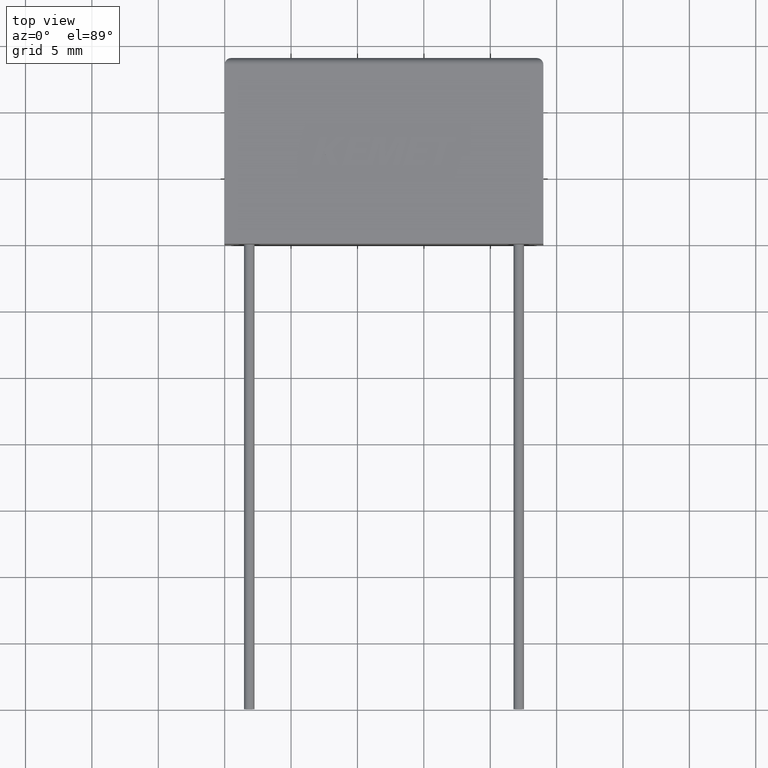
[diagram: clean part render]
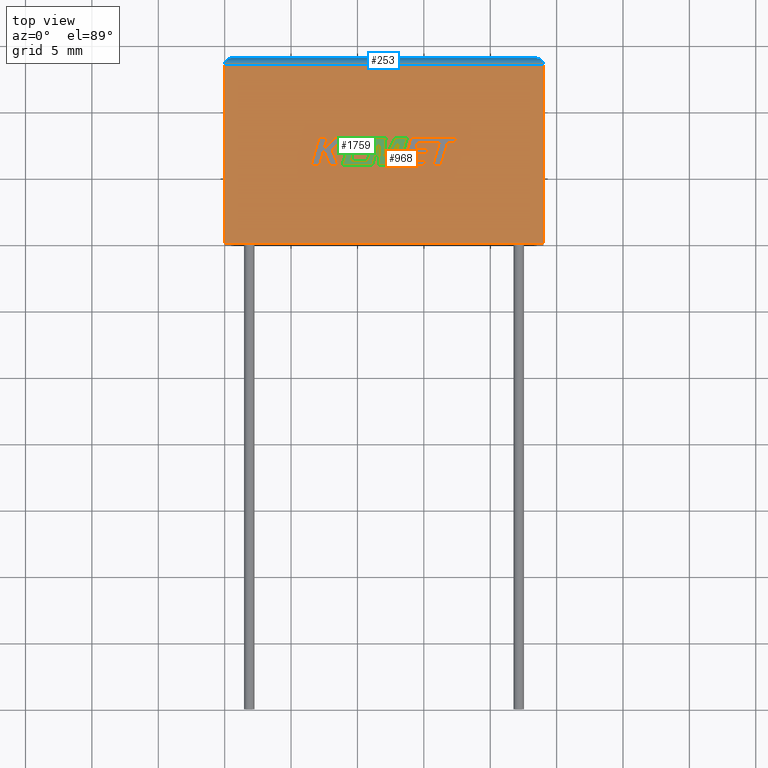
[diagram: same view with three faces highlighted in distinct colors, each labeled with its STEP entity id]
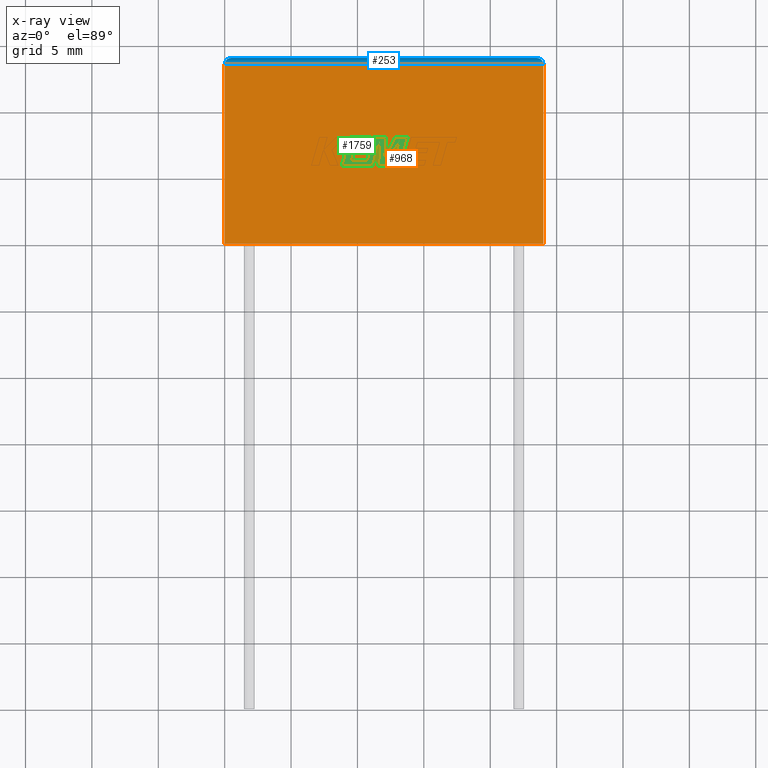
[diagram: x-ray of the same camera — body ghosted, the three highlighted faces saturated]
A machine part, top view with three faces highlighted in distinct colors.
The next image is the same camera in x-ray (body ghosted, the three faces saturated) — at least one of them is partly hidden behind the body in this view.
Their STEP definitions:

[orange] entity #968 — the highlighted planar face has unit normal (0, 0, -1).
#39 = AXIS2_PLACEMENT_3D ( 'NONE', #182, #1710, #1907 ) ;
#137 = ORIENTED_EDGE ( 'NONE', *, *, #2119, .T. ) ;
#182 = CARTESIAN_POINT ( 'NONE',  ( 0.0000000000000000000, 0.0000000000000000000, 7.599999999999999600 ) ) ;
#254 = VECTOR ( 'NONE', #747, 1000.000000000000000 ) ;
#259 = FACE_OUTER_BOUND ( 'NONE', #1365, .T. ) ;
#289 = LINE ( 'NONE', #2323, #2109 ) ;
#303 = VECTOR ( 'NONE', #1196, 1000.000000000000000 ) ;
#335 = ORIENTED_EDGE ( 'NONE', *, *, #1553, .T. ) ;
#348 = CARTESIAN_POINT ( 'NONE',  ( 0.0000000000000000000, 0.0000000000000000000, 7.599999999999999600 ) ) ;
#478 = CARTESIAN_POINT ( 'NONE',  ( 0.0000000000000000000, 0.0000000000000000000, 7.599999999999999600 ) ) ;
#494 = EDGE_CURVE ( 'NONE', #1913, #1644, #289, .T. ) ;
#582 = VERTEX_POINT ( 'NONE', #831 ) ;
#645 = DIRECTION ( 'NONE',  ( -1.000000000000000000, 0.0000000000000000000, 0.0000000000000000000 ) ) ;
#747 = DIRECTION ( 'NONE',  ( -0.0000000000000000000, -1.000000000000000000, -0.0000000000000000000 ) ) ;
#778 = LINE ( 'NONE', #348, #254 ) ;
#831 = CARTESIAN_POINT ( 'NONE',  ( 0.0000000000000000000, 0.0000000000000000000, 7.599999999999999600 ) ) ;
#968 = ADVANCED_FACE ( 'NONE', ( #259 ), #2473, .F. ) ;
#1001 = CARTESIAN_POINT ( 'NONE',  ( 0.0000000000000000000, 13.50000000000000000, 7.599999999999999600 ) ) ;
#1163 = CARTESIAN_POINT ( 'NONE',  ( 24.00000000000000000, 0.0000000000000000000, 7.599999999999999600 ) ) ;
#1196 = DIRECTION ( 'NONE',  ( 0.0000000000000000000, 1.000000000000000000, 0.0000000000000000000 ) ) ;
#1256 = ORIENTED_EDGE ( 'NONE', *, *, #494, .T. ) ;
#1365 = EDGE_LOOP ( 'NONE', ( #137, #1256, #335, #1442 ) ) ;
#1393 = EDGE_CURVE ( 'NONE', #582, #2083, #2347, .T. ) ;
#1430 = CARTESIAN_POINT ( 'NONE',  ( 24.00000000000000000, 13.50000000000000000, 7.599999999999999600 ) ) ;
#1442 = ORIENTED_EDGE ( 'NONE', *, *, #1393, .T. ) ;
#1504 = VECTOR ( 'NONE', #2188, 1000.000000000000000 ) ;
#1553 = EDGE_CURVE ( 'NONE', #1644, #582, #778, .T. ) ;
#1644 = VERTEX_POINT ( 'NONE', #1001 ) ;
#1710 = DIRECTION ( 'NONE',  ( 0.0000000000000000000, 0.0000000000000000000, -1.000000000000000000 ) ) ;
#1907 = DIRECTION ( 'NONE',  ( -1.000000000000000000, 0.0000000000000000000, -0.0000000000000000000 ) ) ;
#1913 = VERTEX_POINT ( 'NONE', #1430 ) ;
#2083 = VERTEX_POINT ( 'NONE', #2344 ) ;
#2109 = VECTOR ( 'NONE', #645, 1000.000000000000000 ) ;
#2119 = EDGE_CURVE ( 'NONE', #2083, #1913, #2339, .T. ) ;
#2188 = DIRECTION ( 'NONE',  ( 1.000000000000000000, 0.0000000000000000000, 0.0000000000000000000 ) ) ;
#2323 = CARTESIAN_POINT ( 'NONE',  ( 0.0000000000000000000, 13.50000000000000000, 7.599999999999999600 ) ) ;
#2339 = LINE ( 'NONE', #1163, #303 ) ;
#2344 = CARTESIAN_POINT ( 'NONE',  ( 24.00000000000000000, 0.0000000000000000000, 7.599999999999999600 ) ) ;
#2347 = LINE ( 'NONE', #478, #1504 ) ;
#2473 = PLANE ( 'NONE',  #39 ) ;

[blue] entity #253 — the highlighted cylindrical surface (edge-blend (fillet) strip) has radius 0.5 mm, axis along (-1, 0, 0).
#51 = VERTEX_POINT ( 'NONE', #103 ) ;
#72 = VERTEX_POINT ( 'NONE', #724 ) ;
#103 = CARTESIAN_POINT ( 'NONE',  ( 0.4999999999999998900, 14.00000000000000000, 7.100000000000000500 ) ) ;
#148 = DIRECTION ( 'NONE',  ( -1.000000000000000000, 0.0000000000000000000, 0.0000000000000000000 ) ) ;
#158 = CARTESIAN_POINT ( 'NONE',  ( 24.00000000000000000, 13.79289321881345000, 7.599999999999998800 ) ) ;
#178 = CARTESIAN_POINT ( 'NONE',  ( 0.0000000000000000000, 14.00000000000000000, 7.100000000000000500 ) ) ;
#253 = ADVANCED_FACE ( 'NONE', ( #1844 ), #1510, .T. ) ;
#289 = LINE ( 'NONE', #2323, #2109 ) ;
#459 = VECTOR ( 'NONE', #604, 1000.000000000000000 ) ;
#494 = EDGE_CURVE ( 'NONE', #1913, #1644, #289, .T. ) ;
#542 = CARTESIAN_POINT ( 'NONE',  ( 23.50000000000000000, 14.00000000000000000, 7.100000000000000500 ) ) ;
#558 = DIRECTION ( 'NONE',  ( 0.0000000000000000000, 0.0000000000000000000, 1.000000000000000000 ) ) ;
#604 = DIRECTION ( 'NONE',  ( 1.000000000000000000, -0.0000000000000000000, -0.0000000000000000000 ) ) ;
#641 = ORIENTED_EDGE ( 'NONE', *, *, #2006, .T. ) ;
#645 = DIRECTION ( 'NONE',  ( -1.000000000000000000, 0.0000000000000000000, 0.0000000000000000000 ) ) ;
#724 = CARTESIAN_POINT ( 'NONE',  ( 23.50000000000000000, 14.00000000000000000, 7.100000000000000500 ) ) ;
#830 = EDGE_LOOP ( 'NONE', ( #641, #2264, #2032, #1445 ) ) ;
#908 = CARTESIAN_POINT ( 'NONE',  ( 0.4999999999999998900, 14.00000000000000000, 7.100000000000000500 ) ) ;
#1001 = CARTESIAN_POINT ( 'NONE',  ( 0.0000000000000000000, 13.50000000000000000, 7.599999999999999600 ) ) ;
#1224 =( BOUNDED_CURVE ( )  B_SPLINE_CURVE ( 3, ( #908, #2229, #2235, #2273 ),
 .UNSPECIFIED., .F., .F. ) 
 B_SPLINE_CURVE_WITH_KNOTS ( ( 4, 4 ),
 ( 1.570796326794896800, 3.141592653589793100 ),
 .UNSPECIFIED. ) 
 CURVE ( )  GEOMETRIC_REPRESENTATION_ITEM ( )  RATIONAL_B_SPLINE_CURVE ( ( 1.000000000000000000, 0.8047378541243650500, 0.8047378541243650500, 1.000000000000000000 ) ) 
 REPRESENTATION_ITEM ( '' )  );
#1317 = LINE ( 'NONE', #178, #459 ) ;
#1430 = CARTESIAN_POINT ( 'NONE',  ( 24.00000000000000000, 13.50000000000000000, 7.599999999999999600 ) ) ;
#1445 = ORIENTED_EDGE ( 'NONE', *, *, #1563, .F. ) ;
#1510 = CYLINDRICAL_SURFACE ( 'NONE', #1574, 0.5000000000000004400 ) ;
#1563 = EDGE_CURVE ( 'NONE', #51, #72, #1317, .T. ) ;
#1574 = AXIS2_PLACEMENT_3D ( 'NONE', #2460, #148, #558 ) ;
#1644 = VERTEX_POINT ( 'NONE', #1001 ) ;
#1678 = CARTESIAN_POINT ( 'NONE',  ( 23.79289321881345000, 13.99999999999999600, 7.392893218813450900 ) ) ;
#1844 = FACE_OUTER_BOUND ( 'NONE', #830, .T. ) ;
#1913 = VERTEX_POINT ( 'NONE', #1430 ) ;
#2006 = EDGE_CURVE ( 'NONE', #51, #1644, #1224, .T. ) ;
#2032 = ORIENTED_EDGE ( 'NONE', *, *, #2216, .F. ) ;
#2087 =( BOUNDED_CURVE ( )  B_SPLINE_CURVE ( 3, ( #542, #1678, #158, #2442 ),
 .UNSPECIFIED., .F., .F. ) 
 B_SPLINE_CURVE_WITH_KNOTS ( ( 4, 4 ),
 ( 1.570796326794896600, 3.141592653589793100 ),
 .UNSPECIFIED. ) 
 CURVE ( )  GEOMETRIC_REPRESENTATION_ITEM ( )  RATIONAL_B_SPLINE_CURVE ( ( 1.000000000000000000, 0.8047378541243649400, 0.8047378541243649400, 1.000000000000000000 ) ) 
 REPRESENTATION_ITEM ( '' )  );
#2109 = VECTOR ( 'NONE', #645, 1000.000000000000000 ) ;
#2216 = EDGE_CURVE ( 'NONE', #72, #1913, #2087, .T. ) ;
#2229 = CARTESIAN_POINT ( 'NONE',  ( 0.2071067811865474300, 13.99999999999999600, 7.392893218813451700 ) ) ;
#2235 = CARTESIAN_POINT ( 'NONE',  ( 3.586907429118598600E-017, 13.79289321881345200, 7.599999999999999600 ) ) ;
#2264 = ORIENTED_EDGE ( 'NONE', *, *, #494, .F. ) ;
#2273 = CARTESIAN_POINT ( 'NONE',  ( 0.0000000000000000000, 13.50000000000000000, 7.599999999999999600 ) ) ;
#2323 = CARTESIAN_POINT ( 'NONE',  ( 0.0000000000000000000, 13.50000000000000000, 7.599999999999999600 ) ) ;
#2442 = CARTESIAN_POINT ( 'NONE',  ( 24.00000000000000000, 13.50000000000000000, 7.599999999999999600 ) ) ;
#2460 = CARTESIAN_POINT ( 'NONE',  ( 0.0000000000000000000, 13.50000000000000000, 7.100000000000000500 ) ) ;

[green] entity #1759 — the highlighted planar face has unit normal (0, 0, -1).
#10 = LINE ( 'NONE', #1444, #2108 ) ;
#24 = ORIENTED_EDGE ( 'NONE', *, *, #1020, .T. ) ;
#27 = VERTEX_POINT ( 'NONE', #448 ) ;
#46 = ORIENTED_EDGE ( 'NONE', *, *, #1402, .T. ) ;
#56 = VECTOR ( 'NONE', #321, 1000.000000000000000 ) ;
#71 = EDGE_CURVE ( 'NONE', #1162, #1662, #1660, .T. ) ;
#79 = LINE ( 'NONE', #627, #420 ) ;
#85 = DIRECTION ( 'NONE',  ( 0.2759782365590722800, 0.9611638845408958500, 0.0000000000000000000 ) ) ;
#112 = DIRECTION ( 'NONE',  ( 0.0000000000000000000, 0.0000000000000000000, -1.000000000000000000 ) ) ;
#117 = CARTESIAN_POINT ( 'NONE',  ( 12.07109175963770500, 6.484372752351331900, 7.604999999999999500 ) ) ;
#122 = PLANE ( 'NONE',  #1587 ) ;
#127 = VERTEX_POINT ( 'NONE', #307 ) ;
#151 = VERTEX_POINT ( 'NONE', #117 ) ;
#162 = ORIENTED_EDGE ( 'NONE', *, *, #1741, .T. ) ;
#167 = ORIENTED_EDGE ( 'NONE', *, *, #2198, .T. ) ;
#175 = VERTEX_POINT ( 'NONE', #1642 ) ;
#191 = CARTESIAN_POINT ( 'NONE',  ( 10.73401303815242800, 7.211409104020453300, 7.604999999999999500 ) ) ;
#208 = VECTOR ( 'NONE', #1110, 1000.000000000000000 ) ;
#236 = VECTOR ( 'NONE', #1873, 1000.000000000000000 ) ;
#237 = VERTEX_POINT ( 'NONE', #2071 ) ;
#242 = DIRECTION ( 'NONE',  ( -0.4443210308329522100, -0.8958676361826799500, 0.0000000000000000000 ) ) ;
#266 = CARTESIAN_POINT ( 'NONE',  ( 13.16397327778773800, 7.794008435746613700, 7.604999999999999500 ) ) ;
#275 = VERTEX_POINT ( 'NONE', #1707 ) ;
#278 = ORIENTED_EDGE ( 'NONE', *, *, #611, .T. ) ;
#284 = LINE ( 'NONE', #607, #1423 ) ;
#290 = CARTESIAN_POINT ( 'NONE',  ( 10.62045664959350900, 6.813844041955564800, 7.604999999999999500 ) ) ;
#307 = CARTESIAN_POINT ( 'NONE',  ( 9.927361184400503200, 7.611413215545429300, 7.604999999999999500 ) ) ;
#318 = EDGE_CURVE ( 'NONE', #27, #789, #1757, .T. ) ;
#321 = DIRECTION ( 'NONE',  ( 1.000000000000000000, 0.0000000000000000000, 0.0000000000000000000 ) ) ;
#322 = VECTOR ( 'NONE', #1243, 1000.000000000000200 ) ;
#339 = CARTESIAN_POINT ( 'NONE',  ( 13.15800970377181800, 5.870199999999999600, 7.604999999999999500 ) ) ;
#350 = ORIENTED_EDGE ( 'NONE', *, *, #1926, .T. ) ;
#355 = CARTESIAN_POINT ( 'NONE',  ( 10.62045664959350900, 6.813844041955564800, 7.604999999999999500 ) ) ;
#378 = CARTESIAN_POINT ( 'NONE',  ( 11.13265049557882900, 5.870199999999998800, 7.604999999999999500 ) ) ;
#401 = VECTOR ( 'NONE', #1540, 1000.000000000000100 ) ;
#419 = ORIENTED_EDGE ( 'NONE', *, *, #2346, .T. ) ;
#420 = VECTOR ( 'NONE', #850, 1000.000000000000100 ) ;
#448 = CARTESIAN_POINT ( 'NONE',  ( 11.68238478015423700, 7.784788436449807700, 7.604999999999999500 ) ) ;
#500 = LINE ( 'NONE', #2293, #401 ) ;
#522 = VERTEX_POINT ( 'NONE', #1394 ) ;
#552 = CARTESIAN_POINT ( 'NONE',  ( 12.14838708525922700, 5.870199999999999600, 7.604999999999999500 ) ) ;
#557 = CARTESIAN_POINT ( 'NONE',  ( 10.90717901084580400, 7.611413215545429300, 7.604999999999999500 ) ) ;
#566 = VECTOR ( 'NONE', #1322, 1000.000000000000000 ) ;
#574 = ORIENTED_EDGE ( 'NONE', *, *, #2084, .T. ) ;
#581 = CARTESIAN_POINT ( 'NONE',  ( 10.90717901084580400, 7.611413215545429300, 7.604999999999999500 ) ) ;
#583 = EDGE_CURVE ( 'NONE', #237, #151, #1485, .T. ) ;
#590 = LINE ( 'NONE', #1085, #56 ) ;
#605 = CARTESIAN_POINT ( 'NONE',  ( 11.68238478015423700, 7.784788436449807700, 7.604999999999999500 ) ) ;
#607 = CARTESIAN_POINT ( 'NONE',  ( 9.810966866978692000, 7.211409104020453300, 7.604999999999999500 ) ) ;
#611 = EDGE_CURVE ( 'NONE', #1992, #2474, #2292, .T. ) ;
#627 = CARTESIAN_POINT ( 'NONE',  ( 11.23794812053024300, 8.020761567497706000, 7.604999999999999500 ) ) ;
#691 = VECTOR ( 'NONE', #2024, 1000.000000000000100 ) ;
#699 = EDGE_CURVE ( 'NONE', #127, #2276, #785, .T. ) ;
#700 = CARTESIAN_POINT ( 'NONE',  ( 10.73740024356318100, 6.279345642751769300, 7.604999999999999500 ) ) ;
#708 = DIRECTION ( 'NONE',  ( -1.000000000000000000, 0.0000000000000000000, 0.0000000000000000000 ) ) ;
#713 = CARTESIAN_POINT ( 'NONE',  ( 11.02344254813588800, 8.020761567497706000, 7.604999999999999500 ) ) ;
#731 = VERTEX_POINT ( 'NONE', #2368 ) ;
#743 = EDGE_CURVE ( 'NONE', #789, #731, #10, .T. ) ;
#755 = CARTESIAN_POINT ( 'NONE',  ( 11.57506660389045000, 5.870199999999999600, 7.604999999999999500 ) ) ;
#756 = ORIENTED_EDGE ( 'NONE', *, *, #2355, .T. ) ;
#760 = VECTOR ( 'NONE', #85, 1000.000000000000200 ) ;
#761 = EDGE_CURVE ( 'NONE', #944, #2005, #2169, .T. ) ;
#784 = CARTESIAN_POINT ( 'NONE',  ( 10.73401303815242800, 7.211409104020453300, 7.604999999999999500 ) ) ;
#785 = LINE ( 'NONE', #1056, #1375 ) ;
#789 = VERTEX_POINT ( 'NONE', #755 ) ;
#791 = ORIENTED_EDGE ( 'NONE', *, *, #761, .T. ) ;
#817 = CARTESIAN_POINT ( 'NONE',  ( 9.545247794913541000, 6.279345642751769300, 7.604999999999999500 ) ) ;
#825 = EDGE_CURVE ( 'NONE', #2474, #1975, #840, .T. ) ;
#832 = CARTESIAN_POINT ( 'NONE',  ( 10.73740024356318100, 6.279345642751769300, 7.604999999999999500 ) ) ;
#840 = LINE ( 'NONE', #784, #566 ) ;
#850 = DIRECTION ( 'NONE',  ( -0.2762517575166415500, -0.9610853065513833600, 0.0000000000000000000 ) ) ;
#853 = CARTESIAN_POINT ( 'NONE',  ( 13.15800970377181800, 5.870199999999999600, 7.604999999999999500 ) ) ;
#885 = ORIENTED_EDGE ( 'NONE', *, *, #1216, .T. ) ;
#898 = CARTESIAN_POINT ( 'NONE',  ( 12.07109175963770500, 6.484372752351331900, 7.604999999999999500 ) ) ;
#910 = CARTESIAN_POINT ( 'NONE',  ( 11.02344254813588800, 8.020761567497706000, 7.604999999999999500 ) ) ;
#926 = VECTOR ( 'NONE', #2405, 1000.000000000000100 ) ;
#938 = LINE ( 'NONE', #2025, #2446 ) ;
#944 = VERTEX_POINT ( 'NONE', #853 ) ;
#1020 = EDGE_CURVE ( 'NONE', #2276, #1769, #1683, .T. ) ;
#1022 = CARTESIAN_POINT ( 'NONE',  ( 12.83309033457769000, 8.020761567497706000, 7.604999999999999500 ) ) ;
#1033 = LINE ( 'NONE', #2372, #1634 ) ;
#1054 = CARTESIAN_POINT ( 'NONE',  ( 11.23794812053024300, 8.020761567497706000, 7.604999999999999500 ) ) ;
#1056 = CARTESIAN_POINT ( 'NONE',  ( 9.927361184400503200, 7.611413215545429300, 7.604999999999999500 ) ) ;
#1082 = LINE ( 'NONE', #2390, #2430 ) ;
#1085 = CARTESIAN_POINT ( 'NONE',  ( 9.697541258551613200, 6.813844041955564800, 7.604999999999999500 ) ) ;
#1099 = DIRECTION ( 'NONE',  ( -1.000000000000000000, 0.0000000000000000000, 0.0000000000000000000 ) ) ;
#1108 = DIRECTION ( 'NONE',  ( 1.000000000000000000, 0.0000000000000000000, 0.0000000000000000000 ) ) ;
#1110 = DIRECTION ( 'NONE',  ( 0.05375259206908614100, 0.9985542843760946100, 0.0000000000000000000 ) ) ;
#1114 = VECTOR ( 'NONE', #2291, 1000.000000000000100 ) ;
#1139 = CARTESIAN_POINT ( 'NONE',  ( 9.810966866978692000, 7.211409104020453300, 7.604999999999999500 ) ) ;
#1153 = VERTEX_POINT ( 'NONE', #2349 ) ;
#1162 = VERTEX_POINT ( 'NONE', #832 ) ;
#1169 = ORIENTED_EDGE ( 'NONE', *, *, #583, .T. ) ;
#1179 = DIRECTION ( 'NONE',  ( 0.4668459304955088200, 0.8843386665637675800, 0.0000000000000000000 ) ) ;
#1187 = ORIENTED_EDGE ( 'NONE', *, *, #1309, .T. ) ;
#1216 = EDGE_CURVE ( 'NONE', #1975, #127, #284, .T. ) ;
#1243 = DIRECTION ( 'NONE',  ( 0.2746459304916890600, 0.9615454294334481200, 0.0000000000000000000 ) ) ;
#1255 = ORIENTED_EDGE ( 'NONE', *, *, #743, .T. ) ;
#1259 = LINE ( 'NONE', #2393, #2252 ) ;
#1260 = CARTESIAN_POINT ( 'NONE',  ( 9.545247794913541000, 6.279345642751769300, 7.604999999999999500 ) ) ;
#1271 = VECTOR ( 'NONE', #1728, 1000.000000000000100 ) ;
#1274 = DIRECTION ( 'NONE',  ( -1.000000000000000000, 0.0000000000000000000, 0.0000000000000000000 ) ) ;
#1305 = VERTEX_POINT ( 'NONE', #2464 ) ;
#1309 = EDGE_CURVE ( 'NONE', #1153, #522, #500, .T. ) ;
#1322 = DIRECTION ( 'NONE',  ( -1.000000000000000000, 0.0000000000000000000, 0.0000000000000000000 ) ) ;
#1361 = ORIENTED_EDGE ( 'NONE', *, *, #2455, .T. ) ;
#1375 = VECTOR ( 'NONE', #1610, 1000.000000000000000 ) ;
#1394 = CARTESIAN_POINT ( 'NONE',  ( 8.815834685362881700, 5.870199999999998800, 7.604999999999999500 ) ) ;
#1402 = EDGE_CURVE ( 'NONE', #1908, #275, #1679, .T. ) ;
#1423 = VECTOR ( 'NONE', #1829, 1000.000000000000000 ) ;
#1444 = CARTESIAN_POINT ( 'NONE',  ( 11.57506660389045000, 5.870199999999999600, 7.604999999999999500 ) ) ;
#1455 = EDGE_CURVE ( 'NONE', #1305, #1745, #1082, .T. ) ;
#1485 = LINE ( 'NONE', #1022, #2227 ) ;
#1540 = DIRECTION ( 'NONE',  ( -0.2765379750249970500, -0.9610029908221274800, 0.0000000000000000000 ) ) ;
#1549 = ORIENTED_EDGE ( 'NONE', *, *, #825, .T. ) ;
#1567 = ORIENTED_EDGE ( 'NONE', *, *, #318, .T. ) ;
#1573 = LINE ( 'NONE', #910, #236 ) ;
#1587 = AXIS2_PLACEMENT_3D ( 'NONE', #2219, #112, #1637 ) ;
#1610 = DIRECTION ( 'NONE',  ( 1.000000000000000000, 0.0000000000000000000, 0.0000000000000000000 ) ) ;
#1634 = VECTOR ( 'NONE', #1835, 1000.000000000000000 ) ;
#1637 = DIRECTION ( 'NONE',  ( -1.000000000000000000, 0.0000000000000000000, 0.0000000000000000000 ) ) ;
#1642 = CARTESIAN_POINT ( 'NONE',  ( 11.13265049557882900, 5.870199999999998800, 7.604999999999999500 ) ) ;
#1659 = ORIENTED_EDGE ( 'NONE', *, *, #1455, .T. ) ;
#1660 = LINE ( 'NONE', #700, #2174 ) ;
#1662 = VERTEX_POINT ( 'NONE', #817 ) ;
#1673 = ORIENTED_EDGE ( 'NONE', *, *, #1797, .T. ) ;
#1675 = FACE_OUTER_BOUND ( 'NONE', #1794, .T. ) ;
#1679 = LINE ( 'NONE', #2380, #691 ) ;
#1683 = LINE ( 'NONE', #581, #1114 ) ;
#1707 = CARTESIAN_POINT ( 'NONE',  ( 12.61151876646890100, 5.870199999999998800, 7.604999999999999500 ) ) ;
#1728 = DIRECTION ( 'NONE',  ( -0.05596501978069497200, -0.9984327301130238000, 0.0000000000000000000 ) ) ;
#1741 = EDGE_CURVE ( 'NONE', #522, #175, #1259, .T. ) ;
#1745 = VERTEX_POINT ( 'NONE', #1054 ) ;
#1757 = LINE ( 'NONE', #605, #1271 ) ;
#1759 = ADVANCED_FACE ( 'NONE', ( #1675 ), #122, .F. ) ;
#1767 = ORIENTED_EDGE ( 'NONE', *, *, #1852, .T. ) ;
#1769 = VERTEX_POINT ( 'NONE', #713 ) ;
#1794 = EDGE_LOOP ( 'NONE', ( #167, #1169, #1767, #1659, #574, #2418, #350, #1673, #278, #1549, #885, #2275, #24, #419, #1187, #162, #756, #1567, #1255, #2391, #46, #1361, #791 ) ) ;
#1797 = EDGE_CURVE ( 'NONE', #2068, #1992, #590, .T. ) ;
#1829 = DIRECTION ( 'NONE',  ( 0.2793947940878305800, 0.9601763114327591700, 0.0000000000000000000 ) ) ;
#1835 = DIRECTION ( 'NONE',  ( 1.000000000000000000, 1.410797975395186900E-015, 0.0000000000000000000 ) ) ;
#1852 = EDGE_CURVE ( 'NONE', #151, #1305, #2449, .T. ) ;
#1873 = DIRECTION ( 'NONE',  ( -1.000000000000000000, 0.0000000000000000000, 0.0000000000000000000 ) ) ;
#1908 = VERTEX_POINT ( 'NONE', #266 ) ;
#1926 = EDGE_CURVE ( 'NONE', #1662, #2068, #2242, .T. ) ;
#1971 = LINE ( 'NONE', #378, #760 ) ;
#1975 = VERTEX_POINT ( 'NONE', #1139 ) ;
#1979 = CARTESIAN_POINT ( 'NONE',  ( 9.697541258551613200, 6.813844041955564800, 7.604999999999999500 ) ) ;
#1992 = VERTEX_POINT ( 'NONE', #355 ) ;
#2005 = VERTEX_POINT ( 'NONE', #2079 ) ;
#2024 = DIRECTION ( 'NONE',  ( -0.2760118818968581000, -0.9611542233438683500, 0.0000000000000000000 ) ) ;
#2025 = CARTESIAN_POINT ( 'NONE',  ( 13.77631201151804200, 8.020761567497706000, 7.604999999999999500 ) ) ;
#2068 = VERTEX_POINT ( 'NONE', #1979 ) ;
#2071 = CARTESIAN_POINT ( 'NONE',  ( 12.83309033457769000, 8.020761567497706000, 7.604999999999999500 ) ) ;
#2079 = CARTESIAN_POINT ( 'NONE',  ( 13.77631201151804200, 8.020761567497706000, 7.604999999999999500 ) ) ;
#2084 = EDGE_CURVE ( 'NONE', #1745, #1162, #79, .T. ) ;
#2108 = VECTOR ( 'NONE', #1108, 1000.000000000000000 ) ;
#2153 = LINE ( 'NONE', #552, #2268 ) ;
#2155 = VECTOR ( 'NONE', #2191, 1000.000000000000100 ) ;
#2169 = LINE ( 'NONE', #339, #926 ) ;
#2174 = VECTOR ( 'NONE', #708, 1000.000000000000000 ) ;
#2191 = DIRECTION ( 'NONE',  ( 0.2740217765954059400, 0.9617234872620598100, 0.0000000000000000000 ) ) ;
#2198 = EDGE_CURVE ( 'NONE', #2005, #237, #938, .T. ) ;
#2219 = CARTESIAN_POINT ( 'NONE',  ( 0.03254324761736357400, 0.4343266908722982500, 7.604999999999999500 ) ) ;
#2227 = VECTOR ( 'NONE', #242, 1000.000000000000100 ) ;
#2242 = LINE ( 'NONE', #1260, #2155 ) ;
#2252 = VECTOR ( 'NONE', #2382, 1000.000000000000000 ) ;
#2268 = VECTOR ( 'NONE', #1179, 1000.000000000000000 ) ;
#2275 = ORIENTED_EDGE ( 'NONE', *, *, #699, .T. ) ;
#2276 = VERTEX_POINT ( 'NONE', #557 ) ;
#2291 = DIRECTION ( 'NONE',  ( 0.2732148821746286900, 0.9619530280415482500, 0.0000000000000000000 ) ) ;
#2292 = LINE ( 'NONE', #290, #322 ) ;
#2293 = CARTESIAN_POINT ( 'NONE',  ( 9.434679732383630200, 8.020761567497706000, 7.604999999999999500 ) ) ;
#2346 = EDGE_CURVE ( 'NONE', #1769, #1153, #1573, .T. ) ;
#2349 = CARTESIAN_POINT ( 'NONE',  ( 9.434679732383630200, 8.020761567497706000, 7.604999999999999500 ) ) ;
#2355 = EDGE_CURVE ( 'NONE', #175, #27, #1971, .T. ) ;
#2368 = CARTESIAN_POINT ( 'NONE',  ( 12.14838708525922700, 5.870199999999999600, 7.604999999999999500 ) ) ;
#2370 = EDGE_CURVE ( 'NONE', #731, #1908, #2153, .T. ) ;
#2372 = CARTESIAN_POINT ( 'NONE',  ( 12.61151876646890100, 5.870199999999998800, 7.604999999999999500 ) ) ;
#2380 = CARTESIAN_POINT ( 'NONE',  ( 13.16397327778773800, 7.794008435746613700, 7.604999999999999500 ) ) ;
#2382 = DIRECTION ( 'NONE',  ( 1.000000000000000000, 3.986449806627420100E-016, 0.0000000000000000000 ) ) ;
#2390 = CARTESIAN_POINT ( 'NONE',  ( 12.15379620799092400, 8.020761567497706000, 7.604999999999999500 ) ) ;
#2391 = ORIENTED_EDGE ( 'NONE', *, *, #2370, .T. ) ;
#2393 = CARTESIAN_POINT ( 'NONE',  ( 8.815834685362881700, 5.870199999999998800, 7.604999999999999500 ) ) ;
#2405 = DIRECTION ( 'NONE',  ( 0.2763139702539114100, 0.9610674221107072800, 0.0000000000000000000 ) ) ;
#2418 = ORIENTED_EDGE ( 'NONE', *, *, #71, .T. ) ;
#2430 = VECTOR ( 'NONE', #1274, 1000.000000000000000 ) ;
#2446 = VECTOR ( 'NONE', #1099, 1000.000000000000000 ) ;
#2449 = LINE ( 'NONE', #898, #208 ) ;
#2455 = EDGE_CURVE ( 'NONE', #275, #944, #1033, .T. ) ;
#2464 = CARTESIAN_POINT ( 'NONE',  ( 12.15379620799092400, 8.020761567497706000, 7.604999999999999500 ) ) ;
#2474 = VERTEX_POINT ( 'NONE', #191 ) ;